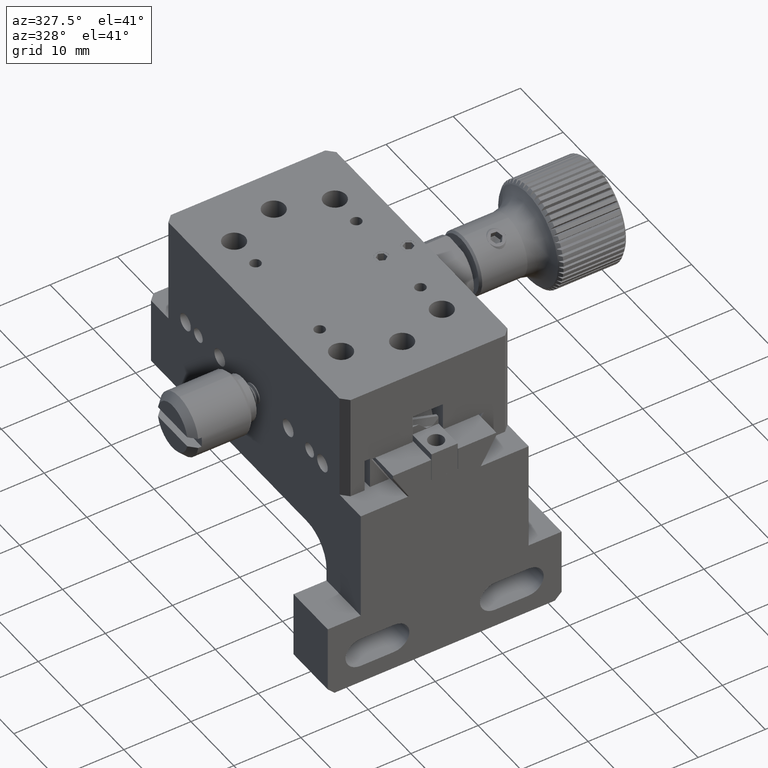
[diagram: clean part render]
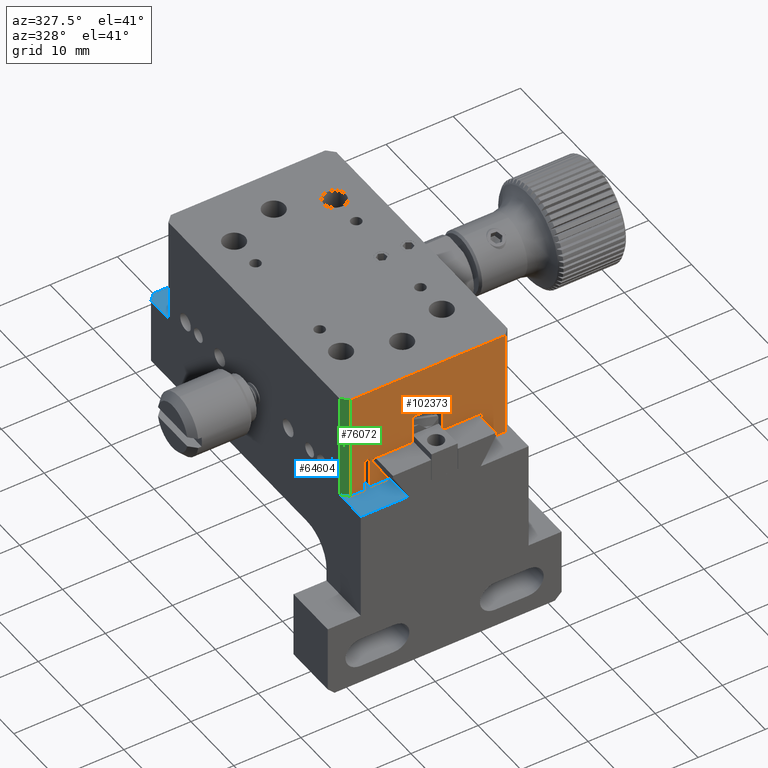
[diagram: same view with three faces highlighted in distinct colors, each labeled with its STEP entity id]
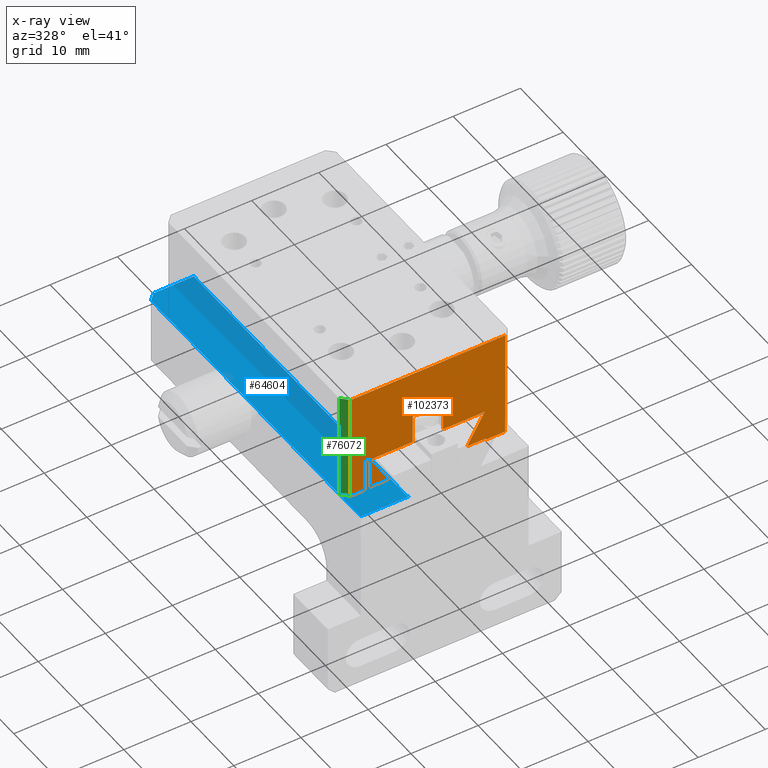
[diagram: x-ray of the same camera — body ghosted, the three highlighted faces saturated]
A machine part, auxiliary view with three faces highlighted in distinct colors.
The next image is the same camera in x-ray (body ghosted, the three faces saturated) — at least one of them is partly hidden behind the body in this view.
Their STEP definitions:

[orange] entity #102373 — the highlighted planar face has unit normal (0, 1, 0).
#262 = LINE ( 'NONE', #83595, #72871 ) ;
#338 = CARTESIAN_POINT ( 'NONE',  ( 55.09762251856641768, 17.57797300430044629, 89.45689688579003018 ) ) ;
#443 = PLANE ( 'NONE',  #95222 ) ;
#720 = ORIENTED_EDGE ( 'NONE', *, *, #40542, .F. ) ;
#4253 = VERTEX_POINT ( 'NONE', #82346 ) ;
#4455 = DIRECTION ( 'NONE',  ( -1.000000000000000000, 1.249000902703367175E-16, 1.299610656904110107E-30 ) ) ;
#4616 = CARTESIAN_POINT ( 'NONE',  ( 72.32471504894826353, 17.57797300430060972, 73.65689688579017513 ) ) ;
#5026 = VERTEX_POINT ( 'NONE', #116671 ) ;
#7859 = CARTESIAN_POINT ( 'NONE',  ( 72.32471504894826353, 17.57797300430060972, 73.45689688579001597 ) ) ;
#8344 = LINE ( 'NONE', #73574, #14463 ) ;
#12371 = EDGE_CURVE ( 'NONE', #48710, #91574, #16666, .T. ) ;
#13192 = CARTESIAN_POINT ( 'NONE',  ( 55.26668241089058142, 17.57797300430056708, 78.15689688579004724 ) ) ;
#14106 = DIRECTION ( 'NONE',  ( -1.000000000000000000, 1.249000902703367175E-16, 1.299610656904110107E-30 ) ) ;
#14463 = VECTOR ( 'NONE', #45177, 1000.000000000000000 ) ;
#15926 = ORIENTED_EDGE ( 'NONE', *, *, #34745, .T. ) ;
#16456 = VECTOR ( 'NONE', #76998, 1000.000000000000000 ) ;
#16666 = LINE ( 'NONE', #338, #58175 ) ;
#18156 = ORIENTED_EDGE ( 'NONE', *, *, #56282, .F. ) ;
#20589 = VECTOR ( 'NONE', #14106, 1000.000000000000000 ) ;
#20797 = LINE ( 'NONE', #95120, #16456 ) ;
#21302 = CARTESIAN_POINT ( 'NONE',  ( 55.09762251856641768, 17.57797300430056353, 78.35689688579014955 ) ) ;
#21604 = CARTESIAN_POINT ( 'NONE',  ( 52.21116878375734416, 17.57797300430044629, 89.45689688579005860 ) ) ;
#22741 = VECTOR ( 'NONE', #107863, 1000.000000000000000 ) ;
#24331 = EDGE_CURVE ( 'NONE', #5026, #101761, #81701, .T. ) ;
#24563 = DIRECTION ( 'NONE',  ( 0.4999999999999553690, -8.680039903814948447E-15, 0.8660254037844643538 ) ) ;
#25350 = LINE ( 'NONE', #117187, #84344 ) ;
#25833 = VECTOR ( 'NONE', #90764, 1000.000000000000000 ) ;
#27024 = VERTEX_POINT ( 'NONE', #74579 ) ;
#27321 = ORIENTED_EDGE ( 'NONE', *, *, #86008, .F. ) ;
#27382 = EDGE_CURVE ( 'NONE', #46344, #91541, #79942, .T. ) ;
#28800 = DIRECTION ( 'NONE',  ( 1.249000902703367175E-16, 1.000000000000000000, 1.040520190250625133E-14 ) ) ;
#29014 = VECTOR ( 'NONE', #24563, 1000.000000000000227 ) ;
#29712 = ORIENTED_EDGE ( 'NONE', *, *, #67219, .F. ) ;
#31651 = CARTESIAN_POINT ( 'NONE',  ( 63.71116878375735126, 17.57797300430056353, 78.15689688579003302 ) ) ;
#33567 = VERTEX_POINT ( 'NONE', #13192 ) ;
#34079 = DIRECTION ( 'NONE',  ( -0.000000000000000000, 1.040520190250625133E-14, -1.000000000000000000 ) ) ;
#34745 = EDGE_CURVE ( 'NONE', #72165, #91574, #98650, .T. ) ;
#34817 = LINE ( 'NONE', #98868, #68953 ) ;
#36072 = CARTESIAN_POINT ( 'NONE',  ( 54.29762251856641342, 17.57797300430057419, 78.35689688579003587 ) ) ;
#36496 = LINE ( 'NONE', #82991, #107418 ) ;
#36838 = LINE ( 'NONE', #7859, #51705 ) ;
#37269 = EDGE_LOOP ( 'NONE', ( #69204, #101904, #105912, #29712, #89618, #720, #39483, #27321, #116321, #56408, #18156, #64871, #68930, #109959, #101766, #107675, #15926, #56332 ) ) ;
#37287 = CARTESIAN_POINT ( 'NONE',  ( 63.71116878375735126, 17.57797300430044629, 89.45689688579003018 ) ) ;
#37466 = EDGE_CURVE ( 'NONE', #57059, #101131, #116934, .T. ) ;
#38839 = EDGE_CURVE ( 'NONE', #27024, #4253, #40726, .T. ) ;
#39483 = ORIENTED_EDGE ( 'NONE', *, *, #38839, .F. ) ;
#40542 = EDGE_CURVE ( 'NONE', #4253, #45184, #36496, .T. ) ;
#40726 = LINE ( 'NONE', #31651, #20589 ) ;
#42092 = LINE ( 'NONE', #79543, #29014 ) ;
#43146 = CARTESIAN_POINT ( 'NONE',  ( 54.29762251856641342, 17.57797300430044629, 89.45689688579003018 ) ) ;
#43755 = CARTESIAN_POINT ( 'NONE',  ( 65.96116878375735837, 17.57797300430051735, 82.35689688579003587 ) ) ;
#43865 = DIRECTION ( 'NONE',  ( 0.000000000000000000, -1.040520190250625133E-14, 1.000000000000000000 ) ) ;
#44562 = CARTESIAN_POINT ( 'NONE',  ( 57.86475862224359190, 17.57797300430061327, 73.65689688579003302 ) ) ;
#44993 = LINE ( 'NONE', #66076, #103838 ) ;
#45177 = DIRECTION ( 'NONE',  ( -1.000000000000000000, -6.589501017515719791E-30, 6.332891066658243062E-16 ) ) ;
#45184 = VERTEX_POINT ( 'NONE', #43755 ) ;
#46335 = FACE_OUTER_BOUND ( 'NONE', #37269, .T. ) ;
#46344 = VERTEX_POINT ( 'NONE', #52664 ) ;
#47941 = CARTESIAN_POINT ( 'NONE',  ( 63.71116878375735126, 17.57797300430056353, 78.15689688579004724 ) ) ;
#48710 = VERTEX_POINT ( 'NONE', #67531 ) ;
#48896 = VERTEX_POINT ( 'NONE', #105586 ) ;
#51539 = VECTOR ( 'NONE', #68471, 1000.000000000000000 ) ;
#51705 = VECTOR ( 'NONE', #62216, 1000.000000000000000 ) ;
#52664 = CARTESIAN_POINT ( 'NONE',  ( 54.29762251856641342, 17.57797300430061327, 73.45689688579027177 ) ) ;
#53174 = VECTOR ( 'NONE', #4455, 1000.000000000000000 ) ;
#53903 = CARTESIAN_POINT ( 'NONE',  ( 76.21116878375735837, 17.57797300430044629, 89.45689688579003018 ) ) ;
#54648 = LINE ( 'NONE', #47941, #70666 ) ;
#55424 = VECTOR ( 'NONE', #61902, 1000.000000000000000 ) ;
#55784 = DIRECTION ( 'NONE',  ( 0.000000000000000000, -1.040520190250625133E-14, 1.000000000000000000 ) ) ;
#55826 = DIRECTION ( 'NONE',  ( -1.000000000000000000, 1.249000902703367175E-16, 1.299610656904110107E-30 ) ) ;
#56282 = EDGE_CURVE ( 'NONE', #99853, #74219, #8344, .T. ) ;
#56332 = ORIENTED_EDGE ( 'NONE', *, *, #12371, .F. ) ;
#56408 = ORIENTED_EDGE ( 'NONE', *, *, #76917, .T. ) ;
#56943 = CARTESIAN_POINT ( 'NONE',  ( 52.21116878375736547, 17.57797300430059195, 73.45689688579004439 ) ) ;
#57059 = VERTEX_POINT ( 'NONE', #4616 ) ;
#57685 = CARTESIAN_POINT ( 'NONE',  ( 72.32471504894826353, 17.57797300430061327, 73.45689688579001597 ) ) ;
#58064 = EDGE_CURVE ( 'NONE', #5026, #99853, #20797, .T. ) ;
#58175 = VECTOR ( 'NONE', #43865, 1000.000000000000000 ) ;
#61902 = DIRECTION ( 'NONE',  ( 0.000000000000000000, -1.040520190250625133E-14, 1.000000000000000000 ) ) ;
#61997 = DIRECTION ( 'NONE',  ( 0.4999999999999553690, 8.680039903814948447E-15, -0.8660254037844643538 ) ) ;
#62216 = DIRECTION ( 'NONE',  ( -6.332891066658258839E-16, 0.000000000000000000, -1.000000000000000000 ) ) ;
#64871 = ORIENTED_EDGE ( 'NONE', *, *, #58064, .F. ) ;
#65652 = DIRECTION ( 'NONE',  ( 0.000000000000000000, -1.040520190250625133E-14, 1.000000000000000000 ) ) ;
#66076 = CARTESIAN_POINT ( 'NONE',  ( 63.71116878375735126, 17.57797300430060972, 73.65689688579003302 ) ) ;
#66656 = EDGE_CURVE ( 'NONE', #91541, #101761, #80646, .T. ) ;
#67219 = EDGE_CURVE ( 'NONE', #67927, #48896, #262, .T. ) ;
#67531 = CARTESIAN_POINT ( 'NONE',  ( 55.09762251856641768, 17.57797300430060972, 73.65689688579003302 ) ) ;
#67927 = VERTEX_POINT ( 'NONE', #99217 ) ;
#68471 = DIRECTION ( 'NONE',  ( 1.000000000000000000, -1.597318399817943929E-29, 1.535115238305184069E-15 ) ) ;
#68930 = ORIENTED_EDGE ( 'NONE', *, *, #24331, .T. ) ;
#68953 = VECTOR ( 'NONE', #61997, 1000.000000000000227 ) ;
#69087 = CARTESIAN_POINT ( 'NONE',  ( 63.71116878375735126, 17.57797300430061327, 73.45689688579004439 ) ) ;
#69204 = ORIENTED_EDGE ( 'NONE', *, *, #115247, .F. ) ;
#70338 = LINE ( 'NONE', #43146, #92686 ) ;
#70666 = VECTOR ( 'NONE', #55826, 1000.000000000000000 ) ;
#71031 = CARTESIAN_POINT ( 'NONE',  ( 63.71116878375735126, 17.57797300430060972, 73.65689688579001881 ) ) ;
#72165 = VERTEX_POINT ( 'NONE', #36072 ) ;
#72770 = DIRECTION ( 'NONE',  ( -0.000000000000000000, 1.040520190250625133E-14, -1.000000000000000000 ) ) ;
#72871 = VECTOR ( 'NONE', #72770, 1000.000000000000000 ) ;
#73574 = CARTESIAN_POINT ( 'NONE',  ( 76.21116878375734416, 17.57797300430061327, 73.45689688579003018 ) ) ;
#73704 = EDGE_CURVE ( 'NONE', #33567, #107860, #34817, .T. ) ;
#74219 = VERTEX_POINT ( 'NONE', #57685 ) ;
#74579 = CARTESIAN_POINT ( 'NONE',  ( 72.15565515662412110, 17.57797300430056353, 78.15689688579003302 ) ) ;
#76917 = EDGE_CURVE ( 'NONE', #57059, #74219, #36838, .T. ) ;
#76998 = DIRECTION ( 'NONE',  ( -0.000000000000000000, 1.040520190250625133E-14, -1.000000000000000000 ) ) ;
#79543 = CARTESIAN_POINT ( 'NONE',  ( 69.55757894527108931, 17.57797300430060972, 73.65689688579001881 ) ) ;
#79942 = LINE ( 'NONE', #69087, #53174 ) ;
#80646 = LINE ( 'NONE', #115713, #55424 ) ;
#81701 = LINE ( 'NONE', #53903, #25833 ) ;
#82346 = CARTESIAN_POINT ( 'NONE',  ( 65.96116878375735837, 17.57797300430056353, 78.15689688579003302 ) ) ;
#82991 = CARTESIAN_POINT ( 'NONE',  ( 65.96116878375735837, 17.57797300430044629, 89.45689688579003018 ) ) ;
#83595 = CARTESIAN_POINT ( 'NONE',  ( 61.46116878375734416, 17.57797300430044629, 89.45689688579003018 ) ) ;
#84344 = VECTOR ( 'NONE', #108708, 1000.000000000000000 ) ;
#86008 = EDGE_CURVE ( 'NONE', #101131, #27024, #42092, .T. ) ;
#86984 = EDGE_CURVE ( 'NONE', #72165, #46344, #70338, .T. ) ;
#89618 = ORIENTED_EDGE ( 'NONE', *, *, #110725, .F. ) ;
#90764 = DIRECTION ( 'NONE',  ( -1.000000000000000000, -6.589501017515719791E-30, 6.332891066658243062E-16 ) ) ;
#91541 = VERTEX_POINT ( 'NONE', #56943 ) ;
#91574 = VERTEX_POINT ( 'NONE', #21302 ) ;
#92686 = VECTOR ( 'NONE', #34079, 1000.000000000000000 ) ;
#95120 = CARTESIAN_POINT ( 'NONE',  ( 75.21116878375734416, 17.57797300430044629, 89.45689688579003018 ) ) ;
#95222 = AXIS2_PLACEMENT_3D ( 'NONE', #37287, #28800, #65652 ) ;
#98650 = LINE ( 'NONE', #116776, #51539 ) ;
#98868 = CARTESIAN_POINT ( 'NONE',  ( 55.26668241089057432, 17.57797300430056353, 78.15689688579004724 ) ) ;
#99217 = CARTESIAN_POINT ( 'NONE',  ( 61.46116878375734416, 17.57797300430051735, 82.35689688579003587 ) ) ;
#99853 = VERTEX_POINT ( 'NONE', #116915 ) ;
#101131 = VERTEX_POINT ( 'NONE', #115724 ) ;
#101761 = VERTEX_POINT ( 'NONE', #21604 ) ;
#101766 = ORIENTED_EDGE ( 'NONE', *, *, #27382, .F. ) ;
#101904 = ORIENTED_EDGE ( 'NONE', *, *, #73704, .F. ) ;
#102373 = ADVANCED_FACE ( 'NONE', ( #46335 ), #443, .F. ) ;
#102927 = DIRECTION ( 'NONE',  ( -1.000000000000000000, 1.249000902703367175E-16, 1.299610656904110107E-30 ) ) ;
#103838 = VECTOR ( 'NONE', #102927, 1000.000000000000000 ) ;
#105586 = CARTESIAN_POINT ( 'NONE',  ( 61.46116878375734416, 17.57797300430056353, 78.15689688579004724 ) ) ;
#105661 = EDGE_CURVE ( 'NONE', #48896, #33567, #54648, .T. ) ;
#105912 = ORIENTED_EDGE ( 'NONE', *, *, #105661, .F. ) ;
#107418 = VECTOR ( 'NONE', #55784, 1000.000000000000000 ) ;
#107675 = ORIENTED_EDGE ( 'NONE', *, *, #86984, .F. ) ;
#107860 = VERTEX_POINT ( 'NONE', #44562 ) ;
#107863 = DIRECTION ( 'NONE',  ( -1.000000000000000000, 1.249000902703367175E-16, 1.299610656904110107E-30 ) ) ;
#108708 = DIRECTION ( 'NONE',  ( -1.000000000000000000, 1.249000902703367175E-16, 1.299610656904110107E-30 ) ) ;
#109959 = ORIENTED_EDGE ( 'NONE', *, *, #66656, .F. ) ;
#110725 = EDGE_CURVE ( 'NONE', #45184, #67927, #25350, .T. ) ;
#115247 = EDGE_CURVE ( 'NONE', #107860, #48710, #44993, .T. ) ;
#115713 = CARTESIAN_POINT ( 'NONE',  ( 52.21116878375734416, 17.57797300430044629, 89.45689688579003018 ) ) ;
#115724 = CARTESIAN_POINT ( 'NONE',  ( 69.55757894527108931, 17.57797300430060616, 73.65689688579001881 ) ) ;
#116321 = ORIENTED_EDGE ( 'NONE', *, *, #37466, .F. ) ;
#116671 = CARTESIAN_POINT ( 'NONE',  ( 75.21116878375732995, 17.57797300430044984, 89.45689688579001597 ) ) ;
#116776 = CARTESIAN_POINT ( 'NONE',  ( 54.29762251856641342, 17.57797300430056353, 78.35689688579003587 ) ) ;
#116915 = CARTESIAN_POINT ( 'NONE',  ( 75.21116878375732995, 17.57797300430061327, 73.45689688579004439 ) ) ;
#116934 = LINE ( 'NONE', #71031, #22741 ) ;
#117187 = CARTESIAN_POINT ( 'NONE',  ( 63.71116878375735126, 17.57797300430051735, 82.35689688579003587 ) ) ;

[blue] entity #64604 — the highlighted planar face has unit normal (0, 0, -1).
#124 = CARTESIAN_POINT ( 'NONE',  ( 58.44210889143320742, 13.63550279078389771, 73.45689688578997334 ) ) ;
#165 = ORIENTED_EDGE ( 'NONE', *, *, #118896, .F. ) ;
#2379 = LINE ( 'NONE', #68200, #87324 ) ;
#3665 = FACE_OUTER_BOUND ( 'NONE', #83207, .T. ) ;
#5678 = EDGE_CURVE ( 'NONE', #22393, #68520, #86600, .T. ) ;
#7927 = CARTESIAN_POINT ( 'NONE',  ( 58.44210889143321452, 63.63550279078389593, 73.45689688579049914 ) ) ;
#8768 = CARTESIAN_POINT ( 'NONE',  ( 51.21116878375736547, 62.63550279078398830, 73.45689688579048493 ) ) ;
#11755 =( BOUNDED_CURVE ( )  B_SPLINE_CURVE ( 3, ( #7927, #118478, #119077, #64085 ),
 .UNSPECIFIED., .F., .T. ) 
 B_SPLINE_CURVE_WITH_KNOTS ( ( 4, 4 ),
 ( 4.712388980384689674, 6.283185307179586232 ),
 .UNSPECIFIED. ) 
 CURVE ( )  GEOMETRIC_REPRESENTATION_ITEM ( )  RATIONAL_B_SPLINE_CURVE ( ( 1.000000000000000000, 0.8047378541243649375, 0.8047378541243649375, 1.000000000000000000 ) ) 
 REPRESENTATION_ITEM ( '' )  );
#17136 = CARTESIAN_POINT ( 'NONE',  ( 58.21116878375735126, 63.63550279078389593, 73.45689688579049914 ) ) ;
#18091 = EDGE_CURVE ( 'NONE', #26920, #111591, #2379, .T. ) ;
#19891 = ORIENTED_EDGE ( 'NONE', *, *, #18091, .T. ) ;
#22393 = VERTEX_POINT ( 'NONE', #44402 ) ;
#22669 = VECTOR ( 'NONE', #104687, 1000.000000000000000 ) ;
#23798 = VECTOR ( 'NONE', #42616, 1000.000000000000000 ) ;
#26731 = VERTEX_POINT ( 'NONE', #8768 ) ;
#26920 = VERTEX_POINT ( 'NONE', #27493 ) ;
#27493 = CARTESIAN_POINT ( 'NONE',  ( 58.44210889143321452, 63.63550279078389593, 73.45689688579049914 ) ) ;
#27768 = CARTESIAN_POINT ( 'NONE',  ( 51.21116878375735126, 62.63550279078388883, 73.45689688579048493 ) ) ;
#28966 = DIRECTION ( 'NONE',  ( -1.000000000000000000, 0.000000000000000000, -0.000000000000000000 ) ) ;
#29777 = LINE ( 'NONE', #68417, #22669 ) ;
#31436 = DIRECTION ( 'NONE',  ( 0.000000000000000000, 1.000000000000000000, 1.047444401652940007E-14 ) ) ;
#32050 = CARTESIAN_POINT ( 'NONE',  ( 58.21116878375735837, 63.43550279078390020, 73.45689688579049914 ) ) ;
#33017 = EDGE_CURVE ( 'NONE', #26731, #111591, #110529, .T. ) ;
#34763 = ORIENTED_EDGE ( 'NONE', *, *, #33017, .F. ) ;
#38121 = DIRECTION ( 'NONE',  ( 0.000000000000000000, 1.047444401652940007E-14, -1.000000000000000000 ) ) ;
#40757 = EDGE_CURVE ( 'NONE', #26731, #89638, #29777, .T. ) ;
#42616 = DIRECTION ( 'NONE',  ( -1.000000000000000000, 0.000000000000000000, -0.000000000000000000 ) ) ;
#43210 = CARTESIAN_POINT ( 'NONE',  ( 51.21116878375735126, 13.63550279078389771, 73.45689688578997334 ) ) ;
#43811 = VECTOR ( 'NONE', #93576, 1000.000000000000114 ) ;
#44402 = CARTESIAN_POINT ( 'NONE',  ( 58.21116878375735837, 13.83550279078386147, 73.45689688578998755 ) ) ;
#45695 = AXIS2_PLACEMENT_3D ( 'NONE', #68281, #38121, #31436 ) ;
#46855 = ORIENTED_EDGE ( 'NONE', *, *, #99973, .F. ) ;
#51675 = LINE ( 'NONE', #43210, #23798 ) ;
#52125 = ORIENTED_EDGE ( 'NONE', *, *, #40757, .T. ) ;
#53808 = CARTESIAN_POINT ( 'NONE',  ( 58.30682730845261830, 13.63550279078389948, 73.45689688578997334 ) ) ;
#63184 = CARTESIAN_POINT ( 'NONE',  ( 51.21116878375734416, 13.63550279078389771, 73.45689688579022913 ) ) ;
#64085 = CARTESIAN_POINT ( 'NONE',  ( 58.21116878375735837, 63.43550279078390020, 73.45689688579049914 ) ) ;
#64241 = DIRECTION ( 'NONE',  ( -0.000000000000000000, -1.000000000000000000, -1.047444401652940007E-14 ) ) ;
#64604 = ADVANCED_FACE ( 'NONE', ( #3665 ), #94298, .F. ) ;
#68200 = CARTESIAN_POINT ( 'NONE',  ( 63.71116878375735126, 63.63550279078389593, 73.45689688579049914 ) ) ;
#68281 = CARTESIAN_POINT ( 'NONE',  ( 51.21116878375735126, 63.63550279078389593, 73.45689688579049914 ) ) ;
#68417 = CARTESIAN_POINT ( 'NONE',  ( 51.21116878375735126, 63.63550279078389593, 73.45689688579048493 ) ) ;
#68520 = VERTEX_POINT ( 'NONE', #124 ) ;
#69052 = VERTEX_POINT ( 'NONE', #32050 ) ;
#73159 = CARTESIAN_POINT ( 'NONE',  ( 58.44210889143320742, 13.63550279078389771, 73.45689688578997334 ) ) ;
#83207 = EDGE_LOOP ( 'NONE', ( #34763, #52125, #46855, #85717, #165, #92128, #19891 ) ) ;
#85717 = ORIENTED_EDGE ( 'NONE', *, *, #5678, .F. ) ;
#86600 =( BOUNDED_CURVE ( )  B_SPLINE_CURVE ( 3, ( #93055, #99731, #53808, #73159 ),
 .UNSPECIFIED., .F., .T. ) 
 B_SPLINE_CURVE_WITH_KNOTS ( ( 4, 4 ),
 ( 3.141592653589966311, 4.712388980384689674 ),
 .UNSPECIFIED. ) 
 CURVE ( )  GEOMETRIC_REPRESENTATION_ITEM ( )  RATIONAL_B_SPLINE_CURVE ( ( 1.000000000000000000, 0.8047378541244057937, 0.8047378541244057937, 1.000000000000000000 ) ) 
 REPRESENTATION_ITEM ( '' )  );
#87324 = VECTOR ( 'NONE', #28966, 1000.000000000000000 ) ;
#89638 = VERTEX_POINT ( 'NONE', #63184 ) ;
#92128 = ORIENTED_EDGE ( 'NONE', *, *, #93749, .F. ) ;
#93055 = CARTESIAN_POINT ( 'NONE',  ( 58.21116878375735837, 13.83550279078386147, 73.45689688578998755 ) ) ;
#93576 = DIRECTION ( 'NONE',  ( 0.7071067811865474617, 0.7071067811865474617, 9.813077866773586595E-15 ) ) ;
#93749 = EDGE_CURVE ( 'NONE', #26920, #69052, #11755, .T. ) ;
#94298 = PLANE ( 'NONE',  #45695 ) ;
#99731 = CARTESIAN_POINT ( 'NONE',  ( 58.21116878375738679, 13.71834550325849911, 73.45689688578997334 ) ) ;
#99905 = LINE ( 'NONE', #17136, #113670 ) ;
#99973 = EDGE_CURVE ( 'NONE', #68520, #89638, #51675, .T. ) ;
#104687 = DIRECTION ( 'NONE',  ( 0.000000000000000000, -1.000000000000000000, -0.000000000000000000 ) ) ;
#110529 = LINE ( 'NONE', #27768, #43811 ) ;
#111591 = VERTEX_POINT ( 'NONE', #118103 ) ;
#113670 = VECTOR ( 'NONE', #64241, 1000.000000000000000 ) ;
#118103 = CARTESIAN_POINT ( 'NONE',  ( 52.21116878375736547, 63.63550279078389593, 73.45689688579049914 ) ) ;
#118478 = CARTESIAN_POINT ( 'NONE',  ( 58.30682730845260409, 63.63550279078389593, 73.45689688579049914 ) ) ;
#118896 = EDGE_CURVE ( 'NONE', #69052, #22393, #99905, .T. ) ;
#119077 = CARTESIAN_POINT ( 'NONE',  ( 58.21116878375735837, 63.55266007830928743, 73.45689688579049914 ) ) ;

[green] entity #76072 — the highlighted planar face has unit normal (0.7071, 0.7071, 0).
#678 = DIRECTION ( 'NONE',  ( 0.7071067811865499042, -0.7071067811865452413, -0.000000000000000000 ) ) ;
#2942 = ORIENTED_EDGE ( 'NONE', *, *, #9446, .T. ) ;
#5334 = ORIENTED_EDGE ( 'NONE', *, *, #66656, .T. ) ;
#5418 = AXIS2_PLACEMENT_3D ( 'NONE', #68286, #42299, #85833 ) ;
#9446 = EDGE_CURVE ( 'NONE', #36733, #13944, #43583, .T. ) ;
#13944 = VERTEX_POINT ( 'NONE', #26043 ) ;
#15138 = VECTOR ( 'NONE', #98829, 1000.000000000000114 ) ;
#19390 = LINE ( 'NONE', #29039, #45769 ) ;
#21604 = CARTESIAN_POINT ( 'NONE',  ( 52.21116878375734416, 17.57797300430044629, 89.45689688579005860 ) ) ;
#26043 = CARTESIAN_POINT ( 'NONE',  ( 51.21116878375733705, 18.57797300430057774, 73.45689688579004439 ) ) ;
#29039 = CARTESIAN_POINT ( 'NONE',  ( 51.21116878375735126, 18.57797300430044629, 89.45689688579005860 ) ) ;
#36733 = VERTEX_POINT ( 'NONE', #48104 ) ;
#41423 = EDGE_CURVE ( 'NONE', #36733, #101761, #19390, .T. ) ;
#42299 = DIRECTION ( 'NONE',  ( 0.7071067811865452413, 0.7071067811865499042, 6.986450473936556800E-15 ) ) ;
#43583 = LINE ( 'NONE', #97985, #71564 ) ;
#45769 = VECTOR ( 'NONE', #678, 1000.000000000000114 ) ;
#48104 = CARTESIAN_POINT ( 'NONE',  ( 51.21116878375730153, 18.57797300430050313, 89.45689688579015808 ) ) ;
#49228 = EDGE_CURVE ( 'NONE', #13944, #91541, #51103, .T. ) ;
#51103 = LINE ( 'NONE', #69245, #15138 ) ;
#55424 = VECTOR ( 'NONE', #61902, 1000.000000000000000 ) ;
#56943 = CARTESIAN_POINT ( 'NONE',  ( 52.21116878375736547, 17.57797300430059195, 73.45689688579004439 ) ) ;
#61902 = DIRECTION ( 'NONE',  ( 0.000000000000000000, -1.040520190250625133E-14, 1.000000000000000000 ) ) ;
#66656 = EDGE_CURVE ( 'NONE', #91541, #101761, #80646, .T. ) ;
#68286 = CARTESIAN_POINT ( 'NONE',  ( 51.21116878375735126, 18.57797300430044629, 89.45689688579005860 ) ) ;
#69245 = CARTESIAN_POINT ( 'NONE',  ( 51.21116878375733705, 18.57797300430062748, 73.45689688579004439 ) ) ;
#69793 = ORIENTED_EDGE ( 'NONE', *, *, #41423, .F. ) ;
#71564 = VECTOR ( 'NONE', #88915, 1000.000000000000000 ) ;
#76072 = ADVANCED_FACE ( 'NONE', ( #97279 ), #87606, .F. ) ;
#80646 = LINE ( 'NONE', #115713, #55424 ) ;
#85833 = DIRECTION ( 'NONE',  ( -0.7071067811865499042, 0.7071067811865452413, 0.000000000000000000 ) ) ;
#87606 = PLANE ( 'NONE',  #5418 ) ;
#88915 = DIRECTION ( 'NONE',  ( -5.248688894172752433E-16, 0.000000000000000000, -1.000000000000000000 ) ) ;
#91541 = VERTEX_POINT ( 'NONE', #56943 ) ;
#97279 = FACE_OUTER_BOUND ( 'NONE', #101466, .T. ) ;
#97985 = CARTESIAN_POINT ( 'NONE',  ( 51.21116878375734416, 18.57797300430046050, 89.45689688579047072 ) ) ;
#98829 = DIRECTION ( 'NONE',  ( 0.7071067811865451302, -0.7071067811865500152, 0.000000000000000000 ) ) ;
#101055 = ORIENTED_EDGE ( 'NONE', *, *, #49228, .T. ) ;
#101466 = EDGE_LOOP ( 'NONE', ( #5334, #69793, #2942, #101055 ) ) ;
#101761 = VERTEX_POINT ( 'NONE', #21604 ) ;
#115713 = CARTESIAN_POINT ( 'NONE',  ( 52.21116878375734416, 17.57797300430044629, 89.45689688579003018 ) ) ;